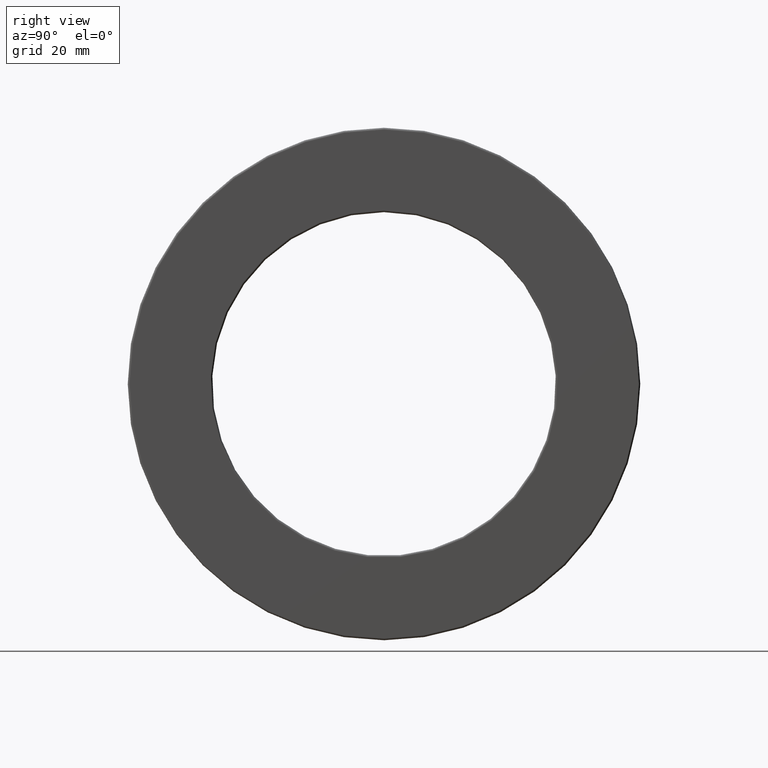
[diagram: clean part render]
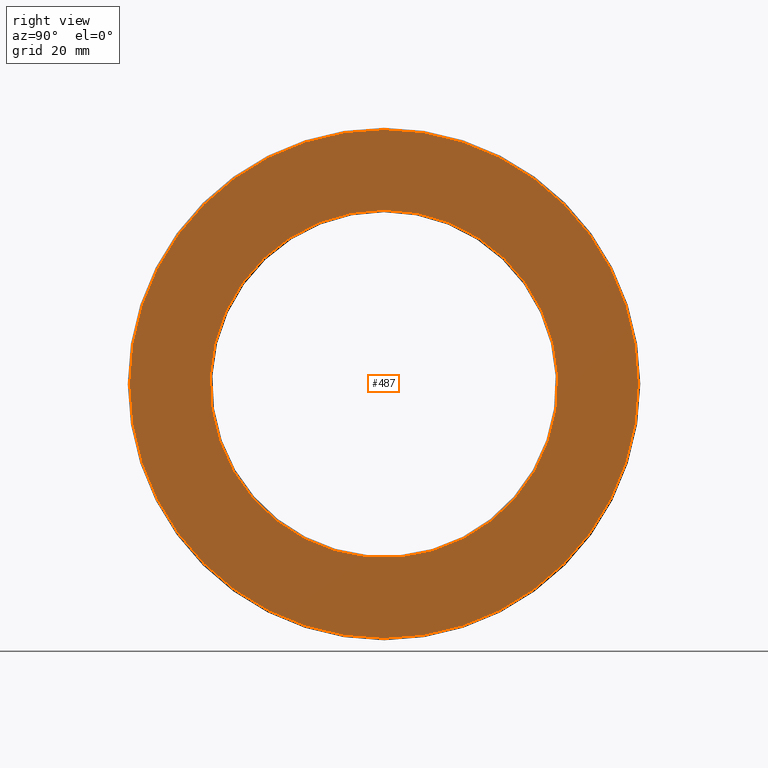
[diagram: same view with one face highlighted and labeled with its STEP entity id]
A machine part, right view. The second image highlights one B-rep face of the part: STEP entity #487.
In plain terms, the highlighted planar face has unit normal (1, 0, 0).
Its self-contained STEP definition (entity closure, byte-faithful):
#69 = AXIS2_PLACEMENT_3D ( 'NONE', #109, #555, #1471 ) ;
#109 = CARTESIAN_POINT ( 'NONE',  ( 0.5000000000000000000, 0.0000000000000000000, 0.0000000000000000000 ) ) ;
#193 = EDGE_CURVE ( 'NONE', #1075, #1075, #1080, .T. ) ;
#216 = CIRCLE ( 'NONE', #742, 2.589375000000000400 ) ;
#263 = PLANE ( 'NONE',  #1017 ) ;
#286 = EDGE_LOOP ( 'NONE', ( #1326 ) ) ;
#487 = ADVANCED_FACE ( 'NONE', ( #753, #1339 ), #263, .T. ) ;
#555 = DIRECTION ( 'NONE',  ( -1.000000000000000000, -0.0000000000000000000, -0.0000000000000000000 ) ) ;
#609 = CARTESIAN_POINT ( 'NONE',  ( 0.5000000000000000000, 0.0000000000000000000, 0.0000000000000000000 ) ) ;
#699 = CARTESIAN_POINT ( 'NONE',  ( 0.5000000000000000000, 0.0000000000000000000, 2.589375000000000400 ) ) ;
#742 = AXIS2_PLACEMENT_3D ( 'NONE', #910, #795, #1257 ) ;
#753 = FACE_BOUND ( 'NONE', #783, .T. ) ;
#783 = EDGE_LOOP ( 'NONE', ( #1249 ) ) ;
#795 = DIRECTION ( 'NONE',  ( -1.000000000000000000, -0.0000000000000000000, -0.0000000000000000000 ) ) ;
#848 = EDGE_CURVE ( 'NONE', #1322, #1322, #216, .T. ) ;
#892 = CARTESIAN_POINT ( 'NONE',  ( 0.5000000000000000000, 0.0000000000000000000, 1.770000000000000000 ) ) ;
#910 = CARTESIAN_POINT ( 'NONE',  ( 0.5000000000000000000, 0.0000000000000000000, 0.0000000000000000000 ) ) ;
#1017 = AXIS2_PLACEMENT_3D ( 'NONE', #609, #1068, #1401 ) ;
#1068 = DIRECTION ( 'NONE',  ( 1.000000000000000000, 0.0000000000000000000, 0.0000000000000000000 ) ) ;
#1075 = VERTEX_POINT ( 'NONE', #892 ) ;
#1080 = CIRCLE ( 'NONE', #69, 1.770000000000000000 ) ;
#1249 = ORIENTED_EDGE ( 'NONE', *, *, #193, .T. ) ;
#1257 = DIRECTION ( 'NONE',  ( 0.0000000000000000000, 0.0000000000000000000, 1.000000000000000000 ) ) ;
#1322 = VERTEX_POINT ( 'NONE', #699 ) ;
#1326 = ORIENTED_EDGE ( 'NONE', *, *, #848, .F. ) ;
#1339 = FACE_OUTER_BOUND ( 'NONE', #286, .T. ) ;
#1401 = DIRECTION ( 'NONE',  ( 0.0000000000000000000, 0.0000000000000000000, -1.000000000000000000 ) ) ;
#1471 = DIRECTION ( 'NONE',  ( 0.0000000000000000000, 0.0000000000000000000, 1.000000000000000000 ) ) ;